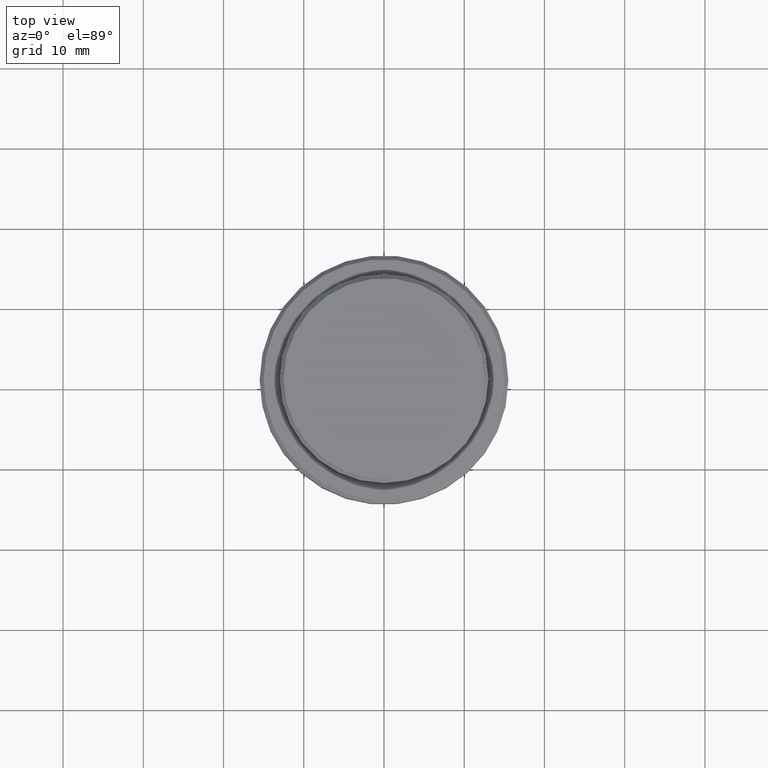
[diagram: clean part render]
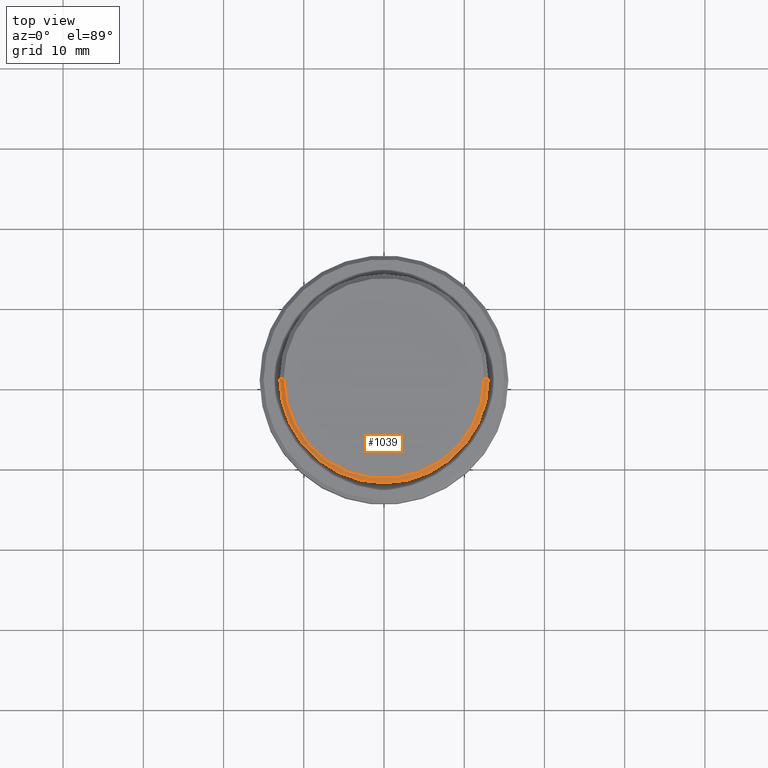
[diagram: same view with one face highlighted and labeled with its STEP entity id]
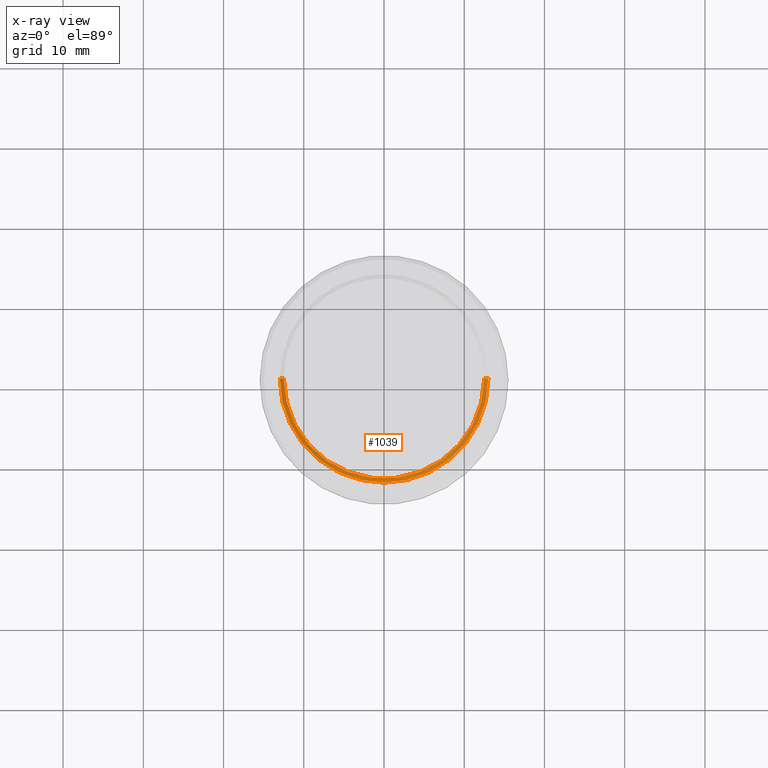
[diagram: x-ray of the same camera — body ghosted, the highlighted face saturated]
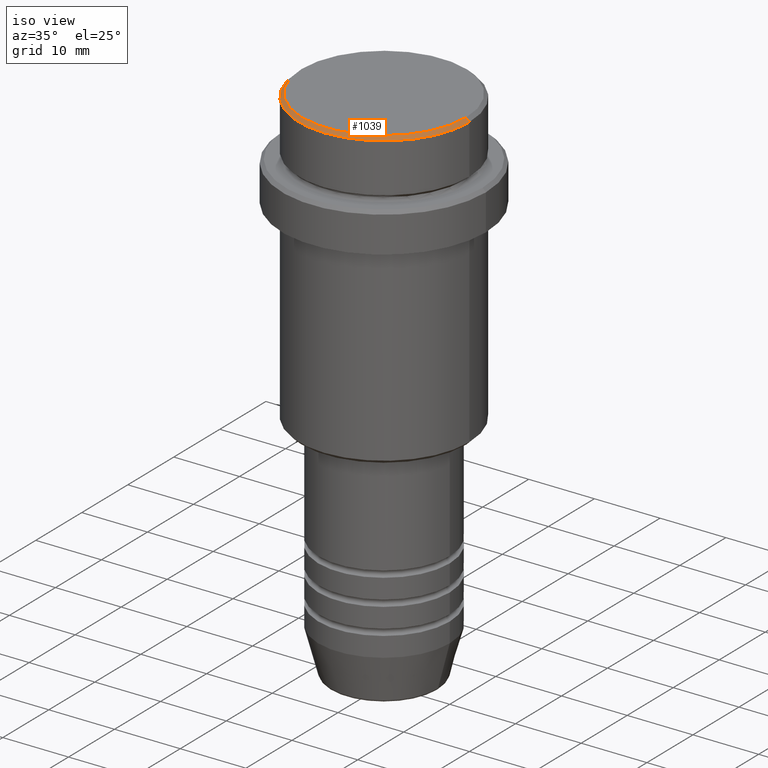
[diagram: same view with one face highlighted and labeled with its STEP entity id]
A machine part, top view. The second image highlights one B-rep face of the part: STEP entity #1039.
The next image is the same camera in x-ray: the body ghosted, the highlighted face saturated — about 0% of this face is hidden behind the body in this view.
A second angle (iso view) of the same face is appended — the face is thin or edge-on in the first view.
In plain terms, the highlighted conical surface has half-angle 45 deg.
Its self-contained STEP definition (entity closure, byte-faithful):
#3 = EDGE_LOOP ( 'NONE', ( #491, #153, #1242, #293 ) ) ;
#25 = CARTESIAN_POINT ( 'NONE',  ( 12.99999999999999822, 0.000000000000000000, -0.4999999999999761302 ) ) ;
#58 = EDGE_CURVE ( 'NONE', #455, #718, #708, .T. ) ;
#120 = CIRCLE ( 'NONE', #1408, 12.99999999999999822 ) ;
#146 = CARTESIAN_POINT ( 'NONE',  ( -12.50000000000002665, 0.000000000000000000, 0.000000000000000000 ) ) ;
#153 = ORIENTED_EDGE ( 'NONE', *, *, #895, .F. ) ;
#293 = ORIENTED_EDGE ( 'NONE', *, *, #1106, .F. ) ;
#330 = DIRECTION ( 'NONE',  ( 1.000000000000000000, 0.000000000000000000, 0.000000000000000000 ) ) ;
#394 = DIRECTION ( 'NONE',  ( -0.000000000000000000, -0.000000000000000000, 1.000000000000000000 ) ) ;
#401 = VERTEX_POINT ( 'NONE', #25 ) ;
#455 = VERTEX_POINT ( 'NONE', #971 ) ;
#461 = FACE_OUTER_BOUND ( 'NONE', #3, .T. ) ;
#491 = ORIENTED_EDGE ( 'NONE', *, *, #1284, .F. ) ;
#584 = VERTEX_POINT ( 'NONE', #957 ) ;
#605 = CARTESIAN_POINT ( 'NONE',  ( 12.50000000000002665, 1.530808498934194874E-15, 0.000000000000000000 ) ) ;
#704 = LINE ( 'NONE', #605, #1101 ) ;
#708 = LINE ( 'NONE', #146, #999 ) ;
#718 = VERTEX_POINT ( 'NONE', #1319 ) ;
#741 = DIRECTION ( 'NONE',  ( 1.000000000000000000, 0.000000000000000000, 0.000000000000000000 ) ) ;
#774 = DIRECTION ( 'NONE',  ( 0.000000000000000000, 0.000000000000000000, -1.000000000000000000 ) ) ;
#856 = CARTESIAN_POINT ( 'NONE',  ( 0.000000000000000000, 0.000000000000000000, 0.000000000000000000 ) ) ;
#895 = EDGE_CURVE ( 'NONE', #455, #584, #1258, .T. ) ;
#957 = CARTESIAN_POINT ( 'NONE',  ( 12.50000000000002665, 1.561424668912876886E-15, 0.000000000000000000 ) ) ;
#971 = CARTESIAN_POINT ( 'NONE',  ( -12.50000000000002665, 0.000000000000000000, 0.000000000000000000 ) ) ;
#999 = VECTOR ( 'NONE', #1038, 1000.000000000000000 ) ;
#1035 = DIRECTION ( 'NONE',  ( 0.7071067811865439090, 8.659560562354888485E-17, -0.7071067811865512365 ) ) ;
#1038 = DIRECTION ( 'NONE',  ( -0.7071067811865439090, 0.000000000000000000, -0.7071067811865512365 ) ) ;
#1039 = ADVANCED_FACE ( 'NONE', ( #461 ), #1372, .T. ) ;
#1054 = AXIS2_PLACEMENT_3D ( 'NONE', #856, #394, #741 ) ;
#1086 = DIRECTION ( 'NONE',  ( 0.000000000000000000, 0.000000000000000000, -1.000000000000000000 ) ) ;
#1097 = DIRECTION ( 'NONE',  ( -1.000000000000000000, 0.000000000000000000, 0.000000000000000000 ) ) ;
#1101 = VECTOR ( 'NONE', #1035, 1000.000000000000000 ) ;
#1106 = EDGE_CURVE ( 'NONE', #401, #718, #120, .T. ) ;
#1242 = ORIENTED_EDGE ( 'NONE', *, *, #58, .T. ) ;
#1258 = CIRCLE ( 'NONE', #1054, 12.50000000000002665 ) ;
#1284 = EDGE_CURVE ( 'NONE', #584, #401, #704, .T. ) ;
#1308 = CARTESIAN_POINT ( 'NONE',  ( 0.000000000000000000, 0.000000000000000000, 0.000000000000000000 ) ) ;
#1317 = AXIS2_PLACEMENT_3D ( 'NONE', #1308, #774, #1097 ) ;
#1319 = CARTESIAN_POINT ( 'NONE',  ( -12.99999999999999822, 1.592040838891558898E-15, -0.4999999999999761302 ) ) ;
#1372 = CONICAL_SURFACE ( 'NONE', #1317, 12.50000000000002665, 0.7853981633974431720 ) ;
#1408 = AXIS2_PLACEMENT_3D ( 'NONE', #1414, #1086, #330 ) ;
#1414 = CARTESIAN_POINT ( 'NONE',  ( 0.000000000000000000, 0.000000000000000000, -0.4999999999999761302 ) ) ;